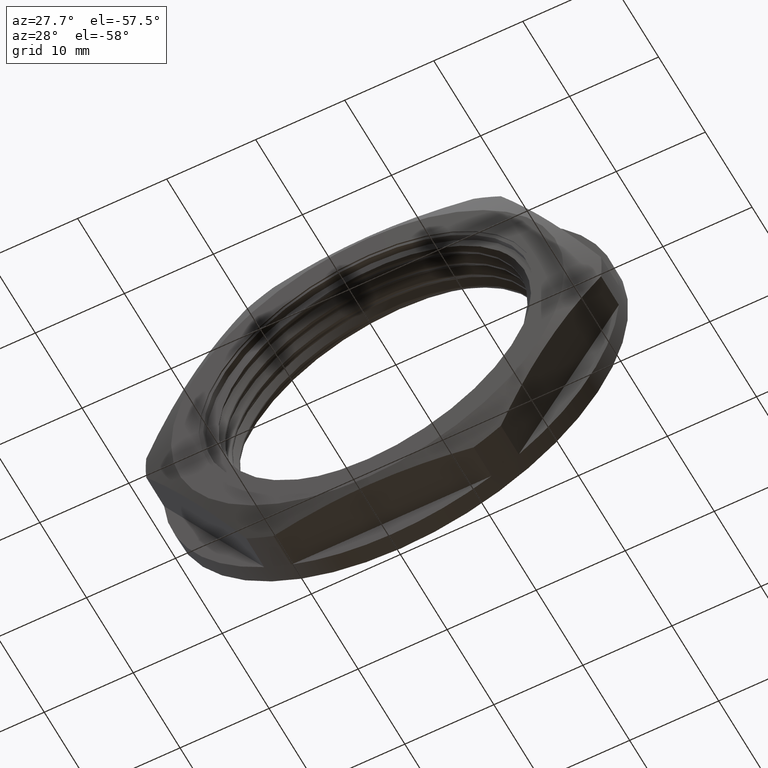
[diagram: clean part render]
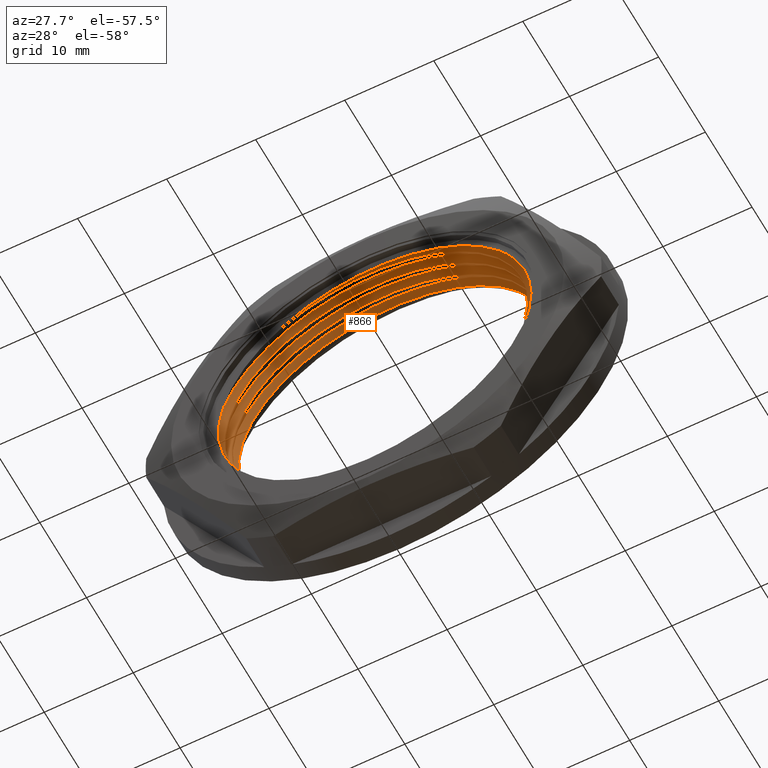
[diagram: same view with one face highlighted and labeled with its STEP entity id]
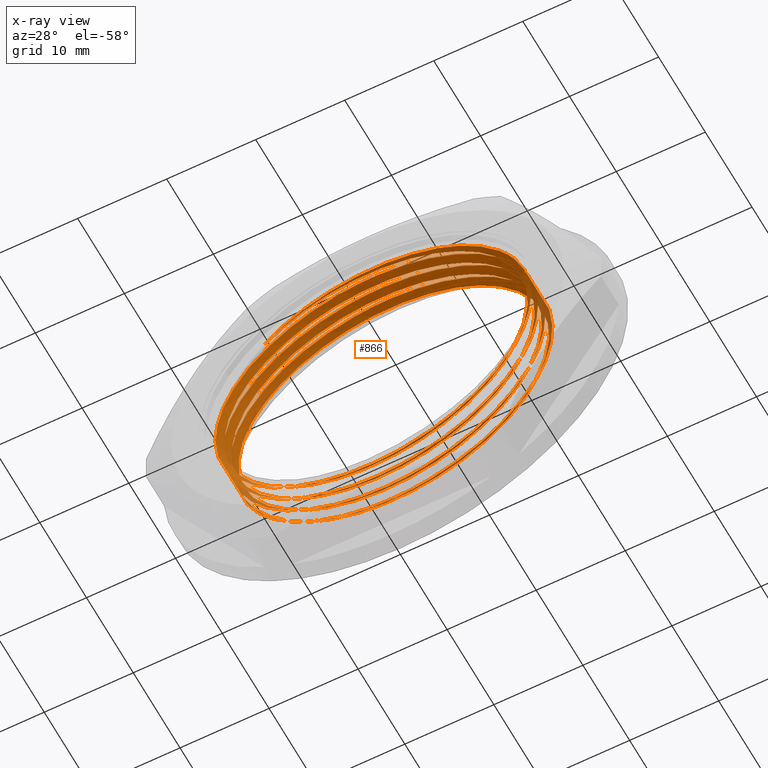
[diagram: x-ray of the same camera — body ghosted, the highlighted face saturated]
A machine part, auxiliary view. The second image highlights one B-rep face of the part: STEP entity #866.
The next image is the same camera in x-ray: the body ghosted, the highlighted face saturated — about 6% of this face is hidden behind the body in this view.
In plain terms, the highlighted face is a freeform B-spline surface patch.
Its self-contained STEP definition (entity closure, byte-faithful):
#4 = CARTESIAN_POINT ( 'NONE',  ( -12.18549335496495800, -34.66422332182955300, 12.19215650132532100 ) ) ;
#9 = CARTESIAN_POINT ( 'NONE',  ( -17.23359359024917100, -34.75986423092049200, 7.144030621165844900 ) ) ;
#15 = FACE_OUTER_BOUND ( 'NONE', #2589, .T. ) ;
#16 = CARTESIAN_POINT ( 'NONE',  ( 0.001804388023163368400, -38.29857786728410200, -17.23037161698330900 ) ) ;
#17 = CARTESIAN_POINT ( 'NONE',  ( -7.137305562599793000, -38.20293695819320600, -17.23038975064849500 ) ) ;
#18 = CARTESIAN_POINT ( 'NONE',  ( -12.18543144275926900, -38.10729604910226700, -12.18228951536428500 ) ) ;
#19 = CARTESIAN_POINT ( 'NONE',  ( -17.23357545658398500, -37.91601423092045300, 0.004920670542888118400 ) ) ;
#20 = CARTESIAN_POINT ( 'NONE',  ( -12.18549335496495800, -37.72473241273863200, 12.19215650132532100 ) ) ;
#21 = CARTESIAN_POINT ( 'NONE',  ( -7.137393119680744700, -37.62909150364774300, 17.24028238148480700 ) ) ;
#22 = CARTESIAN_POINT ( 'NONE',  ( -17.23359359024917100, -37.82037332182957800, 7.144030621165844900 ) ) ;
#25 = CARTESIAN_POINT ( 'NONE',  ( -17.23355732291874500, -38.01165514001135600, -7.134189280080070400 ) ) ;
#33 = CARTESIAN_POINT ( 'NONE',  ( 0.001716830942212114200, -37.53345059455681800, 17.24030051515003200 ) ) ;
#34 = CARTESIAN_POINT ( 'NONE',  ( 7.140826781565171400, -37.43780968546590800, 17.24031864881522200 ) ) ;
#35 = CARTESIAN_POINT ( 'NONE',  ( 12.18895266172464500, -37.34216877637501100, 12.19221841353100900 ) ) ;
#36 = CARTESIAN_POINT ( 'NONE',  ( 17.23707854188412400, -37.24652786728408700, 7.144118178246807300 ) ) ;
#37 = CARTESIAN_POINT ( 'NONE',  ( 12.18901457393033500, -36.95960514001136200, -12.18222760315859300 ) ) ;
#38 = CARTESIAN_POINT ( 'NONE',  ( 17.23711480921455700, -37.05524604910225900, -7.134101722999127500 ) ) ;
#39 = CARTESIAN_POINT ( 'NONE',  ( 7.140914338646133800, -36.86396423092043800, -17.23035348331806600 ) ) ;
#40 = CARTESIAN_POINT ( 'NONE',  ( 0.001804388023163368400, -36.76832332182954100, -17.23037161698330900 ) ) ;
#41 = CARTESIAN_POINT ( 'NONE',  ( 17.23709667554936000, -37.15088695819317600, 0.005008227623841484200 ) ) ;
#42 = CARTESIAN_POINT ( 'NONE',  ( -7.137305562599793000, -36.67268241273865900, -17.23038975064849500 ) ) ;
#43 = CARTESIAN_POINT ( 'NONE',  ( -17.23359359024917100, -36.29011877637499600, 7.144030621165844900 ) ) ;
#44 = CARTESIAN_POINT ( 'NONE',  ( -12.18549335496495800, -36.19447786728408500, 12.19215650132532100 ) ) ;
#45 = CARTESIAN_POINT ( 'NONE',  ( -7.137393119680744700, -36.09883695819316800, 17.24028238148480700 ) ) ;
#46 = CARTESIAN_POINT ( 'NONE',  ( -17.23355732291874500, -36.48140059455682400, -7.134189280080070400 ) ) ;
#47 = CARTESIAN_POINT ( 'NONE',  ( 0.001716830942212114200, -36.00319604910227200, 17.24030051515003200 ) ) ;
#48 = CARTESIAN_POINT ( 'NONE',  ( 7.140826781565171400, -35.90755514001136800, 17.24031864881522200 ) ) ;
#49 = CARTESIAN_POINT ( 'NONE',  ( -17.23357545658398500, -36.38575968546590600, 0.004920670542888118400 ) ) ;
#50 = CARTESIAN_POINT ( 'NONE',  ( -12.18543144275926900, -36.57704150364773500, -12.18228951536428500 ) ) ;
#51 = CARTESIAN_POINT ( 'NONE',  ( 12.18895266172464500, -35.81191423092045100, 12.19221841353100900 ) ) ;
#52 = CARTESIAN_POINT ( 'NONE',  ( 17.23709667554936000, -35.62063241273863700, 0.005008227623841484200 ) ) ;
#53 = CARTESIAN_POINT ( 'NONE',  ( 17.23711480921455700, -35.52499150364773300, -7.134101722999127500 ) ) ;
#54 = CARTESIAN_POINT ( 'NONE',  ( 17.23707854188412400, -35.71627332182956100, 7.144118178246807300 ) ) ;
#55 = CARTESIAN_POINT ( 'NONE',  ( 12.18901457393033500, -35.42935059455681600, -12.18222760315859300 ) ) ;
#56 = CARTESIAN_POINT ( 'NONE',  ( -17.23355732291874500, -34.95114604910226300, -7.134189280080070400 ) ) ;
#57 = CARTESIAN_POINT ( 'NONE',  ( -17.23357545658398500, -34.85550514001136000, 0.004920670542888118400 ) ) ;
#58 = CARTESIAN_POINT ( 'NONE',  ( 7.140914338646133800, -35.33370968546591200, -17.23035348331806600 ) ) ;
#59 = CARTESIAN_POINT ( 'NONE',  ( 0.001804388023163368400, -35.23806877637499500, -17.23037161698330900 ) ) ;
#60 = CARTESIAN_POINT ( 'NONE',  ( -7.137305562599793000, -35.14242786728409100, -17.23038975064849500 ) ) ;
#61 = CARTESIAN_POINT ( 'NONE',  ( -12.18543144275926900, -35.04678695819318100, -12.18228951536428500 ) ) ;
#75 = CARTESIAN_POINT ( 'NONE',  ( 0.001760609482677869500, -35.81562071566762700, -17.91867191455300600 ) ) ;
#77 = CARTESIAN_POINT ( 'NONE',  ( -17.92187575409584400, -35.43305766579467800, 0.004918922228708546100 ) ) ;
#78 = CARTESIAN_POINT ( 'NONE',  ( -17.92189461193650100, -35.33741675670372500, 7.429132191066527100 ) ) ;
#79 = CARTESIAN_POINT ( 'NONE',  ( -7.422425990379125900, -35.71998004950944500, -17.91867191455297700 ) ) ;
#80 = CARTESIAN_POINT ( 'NONE',  ( -12.67213201437784200, -35.62433948397651300, -12.66899255947248000 ) ) ;
#81 = CARTESIAN_POINT ( 'NONE',  ( -17.92185689625519300, -35.52869857488555300, -7.419294346609110100 ) ) ;
#82 = CARTESIAN_POINT ( 'NONE',  ( 0.001715082628032499200, -35.05049402943104300, 17.92860081266189800 ) ) ;
#83 = CARTESIAN_POINT ( 'NONE',  ( -12.67219639907315500, -35.24177584761286400, 12.67885707294389200 ) ) ;
#84 = CARTESIAN_POINT ( 'NONE',  ( -7.422498186209785400, -35.14613493852191100, 17.92858195482124700 ) ) ;
#85 = CARTESIAN_POINT ( 'NONE',  ( 0.001737846055364977500, -35.05049373618584200, 17.92860081271972200 ) ) ;
#86 = CARTESIAN_POINT ( 'NONE',  ( 0.001760609482697529700, -35.05049344294035800, 17.92860081271973600 ) ) ;
#348 = CARTESIAN_POINT ( 'NONE',  ( 7.426019405175170900, -35.91126221124921600, -17.91865305665450900 ) ) ;
#349 = CARTESIAN_POINT ( 'NONE',  ( 0.001783372909989098900, -35.81562100891310500, -17.91867191455298800 ) ) ;
#373 = CARTESIAN_POINT ( 'NONE',  ( 0.001760609482677869500, -35.81562071566762700, -17.91867191455300600 ) ) ;
#376 = CARTESIAN_POINT ( 'NONE',  ( 17.92539593998512300, -36.10254366705110100, -7.419223183917608800 ) ) ;
#378 = CARTESIAN_POINT ( 'NONE',  ( 17.92539697311887900, -36.19818431990000100, 0.004961954868383366300 ) ) ;
#380 = CARTESIAN_POINT ( 'NONE',  ( 0.001806136337342899300, -35.81562130215831300, -17.91867191449517100 ) ) ;
#398 = CARTESIAN_POINT ( 'NONE',  ( 12.67571761803852900, -36.00690312034014100, -12.66892817477716400 ) ) ;
#402 = CARTESIAN_POINT ( 'NONE',  ( 0.001760609482677869700, -31.22485707930399100, -17.91867191455300600 ) ) ;
#428 = CARTESIAN_POINT ( 'NONE',  ( 0.001760609482677869500, -35.81562071566762700, -17.91867191455300600 ) ) ;
#429 = CARTESIAN_POINT ( 'NONE',  ( 0.001760609482697530000, -31.98998435203125700, 17.92860081271973600 ) ) ;
#451 = CARTESIAN_POINT ( 'NONE',  ( 0.001760609482697529700, -35.05049344294035800, 17.92860081271973600 ) ) ;
#455 = CARTESIAN_POINT ( 'NONE',  ( 0.001760609482697529700, -33.52023889748581100, 17.92860081271973600 ) ) ;
#456 = CARTESIAN_POINT ( 'NONE',  ( -17.66312595560996000, -30.80182068353636600, 3.039519299185268900 ) ) ;
#459 = CARTESIAN_POINT ( 'NONE',  ( 0.001760609482677869700, -32.75511162475854100, -17.91867191455300600 ) ) ;
#469 = CARTESIAN_POINT ( 'NONE',  ( -12.37892054371602900, -36.19818431989998700, 11.99560844742661000 ) ) ;
#480 = CARTESIAN_POINT ( 'NONE',  ( 10.16295586653371800, -30.80182068353635900, -13.91649094395144800 ) ) ;
#495 = CARTESIAN_POINT ( 'NONE',  ( 17.92539697311887900, -36.19818431990000100, 0.004961954868383366300 ) ) ;
#510 = CARTESIAN_POINT ( 'NONE',  ( 0.001760609482677869700, -34.28536617021308800, -17.91867191455300600 ) ) ;
#772 = ORIENTED_EDGE ( 'NONE', *, *, #936, .T. ) ;
#773 = ORIENTED_EDGE ( 'NONE', *, *, #927, .F. ) ;
#841 = EDGE_CURVE ( 'NONE', #1091, #1090, #1186, .T. ) ;
#866 = ADVANCED_FACE ( 'NONE', ( #15 ), #1189, .F. ) ;
#871 = EDGE_CURVE ( 'NONE', #1105, #1118, #1190, .T. ) ;
#901 = EDGE_CURVE ( 'NONE', #1104, #1121, #1196, .T. ) ;
#903 = EDGE_CURVE ( 'NONE', #1118, #1123, #1202, .T. ) ;
#905 = EDGE_CURVE ( 'NONE', #1123, #1104, #1206, .T. ) ;
#906 = EDGE_CURVE ( 'NONE', #1108, #1091, #1203, .T. ) ;
#927 = EDGE_CURVE ( 'NONE', #1121, #1108, #1208, .T. ) ;
#936 = EDGE_CURVE ( 'NONE', #1132, #1090, #1226, .T. ) ;
#938 = EDGE_CURVE ( 'NONE', #1133, #1138, #1217, .T. ) ;
#960 = EDGE_CURVE ( 'NONE', #1132, #1133, #1198, .T. ) ;
#975 = EDGE_CURVE ( 'NONE', #1138, #1105, #1195, .T. ) ;
#1090 = VERTEX_POINT ( 'NONE', #456 ) ;
#1091 = VERTEX_POINT ( 'NONE', #402 ) ;
#1104 = VERTEX_POINT ( 'NONE', #455 ) ;
#1105 = VERTEX_POINT ( 'NONE', #428 ) ;
#1108 = VERTEX_POINT ( 'NONE', #429 ) ;
#1118 = VERTEX_POINT ( 'NONE', #451 ) ;
#1121 = VERTEX_POINT ( 'NONE', #459 ) ;
#1123 = VERTEX_POINT ( 'NONE', #510 ) ;
#1132 = VERTEX_POINT ( 'NONE', #480 ) ;
#1133 = VERTEX_POINT ( 'NONE', #469 ) ;
#1138 = VERTEX_POINT ( 'NONE', #495 ) ;
#1186 =( BOUNDED_CURVE ( )  B_SPLINE_CURVE ( 2, ( #2499, #2501, #2502, #2478, #2504, #2482, #2485 ),
 .UNSPECIFIED., .F., .T. ) 
 B_SPLINE_CURVE_WITH_KNOTS ( ( 3, 2, 2, 3 ),
 ( 0.0000000000000000000, 0.01416420533905698300, 0.02832845768542535300, 0.03143188236434077400 ),
 .UNSPECIFIED. ) 
 CURVE ( )  GEOMETRIC_REPRESENTATION_ITEM ( )  RATIONAL_B_SPLINE_CURVE ( ( 0.9999994947553100300, 0.9238797851344703300, 1.000000000000000000, 0.9238795325112869600, 1.000000000000000000, 0.9833218067852611500, 0.9739520849471441400 ) ) 
 REPRESENTATION_ITEM ( '' )  );
#1189 =( BOUNDED_SURFACE ( )  B_SPLINE_SURFACE ( 1, 2, ( 
 ( #16, #17, #18, #25, #19, #22, #20, #21, #33, #34, #35, #36, #41, #38, #37, #39, #40, #42, #50, #46, #49, #43, #44, #45, #47, #48, #51, #54, #52, #53, #55, #58, #59, #60, #61, #56, #57, #9, #4, #2221, #2213, #2212, #2216, #2214, #2215, #2217, #2218, #2219, #2220, #2043, #2044, #2045, #2038, #2046, #2047, #2040, #2039, #2041, #2042, #2048, #2049, #2050, #2051, #2052, #2055, #2060, #2061, #2053, #2054, #2056, #2059, #2057, #2058, #2069, #2066, #2067, #2068, #2070, #2071, #2072, #2074, #2062, #2073, #2063, #2064, #2065, #2075, #2087, #2089, #2090, #2081, #2084, #2092, #2093, #2094, #2085, #2082, #2086, #2080, #2076, #2088, #2083, #2091 ),
 ( #2077, #2078, #2079, #2095, #2096, #2097, #2098, #2099, #2100, #2105, #2101, #2102, #2103, #2104, #2115, #2106, #2113, #2116, #2110, #2112, #2109, #2107, #2108, #2111, #2114, #2118, #2119, #2120, #2117, #2121, #2122, #2124, #2126, #2125, #2123, #2132, #2128, #2133, #2129, #2130, #2131, #2127, #2136, #2134, #2135, #2138, #2139, #2137, #2145, #2142, #2140, #2144, #2141, #2143, #2149, #2146, #2147, #2148, #2150, #2151, #2152, #2153, #2154, #2155, #2159, #2166, #2167, #2156, #2168, #2160, #2169, #2157, #2164, #2158, #2161, #2162, #2163, #2165, #2170, #2171, #2172, #2178, #2175, #2179, #2173, #2180, #2181, #2182, #2176, #2183, #2174, #2184, #2177, #2185, #2190, #2197, #2186, #2194, #2192, #2198, #2195, #2191, #2196 ) ),
 .UNSPECIFIED., .F., .F., .T. ) 
 B_SPLINE_SURFACE_WITH_KNOTS ( ( 2, 2 ),
 ( 3, 2, 2, 2, 2, 2, 2, 2, 2, 2, 2, 2, 2, 2, 2, 2, 2, 2, 2, 2, 2, 2, 2, 2, 2, 2, 2, 2, 2, 2, 2, 2, 2, 2, 2, 2, 2, 2, 2, 2, 2, 2, 2, 2, 2, 2, 2, 2, 2, 2, 2, 3 ),
 ( 0.0000000000000000000, 1.000000000000000000 ),
 ( 0.0000000000000000000, 0.01785714285714284900, 0.03571428571428569800, 0.05357142857142859600, 0.07142857142857139700, 0.08928571428571430200, 0.1071428571428570000, 0.1250000000000000000, 0.1428571428571430200, 0.1607142857142854800, 0.1785714285714284900, 0.1964285714285715100, 0.2142857142857145000, 0.2321428571428570100, 0.2500000000000000000, 0.2678571428571430200, 0.2857142857142855300, 0.3035714285714284900, 0.3214285714285715100, 0.3392857142857145200, 0.3571428571428569800, 0.3750000000000000000, 0.3928571428571430200, 0.4107142857142855300, 0.4285714285714284900, 0.4464285714285715100, 0.4642857142857140200, 0.4821428571428569800, 0.5000000000000000000, 0.5178571428571430200, 0.5357142857142859200, 0.5535714285714290500, 0.5714285714285709500, 0.5892857142857139700, 0.6071428571428569800, 0.6250000000000000000, 0.6428571428571430200, 0.6607142857142859200, 0.6785714285714290500, 0.6964285714285709500, 0.7142857142857139700, 0.7321428571428569800, 0.7500000000000000000, 0.7678571428571430200, 0.7857142857142859200, 0.8035714285714290500, 0.8214285714285709500, 0.8392857142857139700, 0.8571428571428569800, 0.8750000000000000000, 0.8928571428571430200, 0.8996306387812650400 ),
 .UNSPECIFIED. ) 
 GEOMETRIC_REPRESENTATION_ITEM ( )  RATIONAL_B_SPLINE_SURFACE ( (
 ( 1.000000000000000000, 0.9238795325112869600, 1.000000000000000000, 0.9238795325112869600, 1.000000000000000000, 0.9238795325112869600, 1.000000000000000000, 0.9238795325112869600, 1.000000000000000000, 0.9238795325112869600, 1.000000000000000000, 0.9238795325112869600, 1.000000000000000000, 0.9238795325112869600, 1.000000000000000000, 0.9238795325112869600, 1.000000000000000000, 0.9238795325112869600, 1.000000000000000000, 0.9238795325112869600, 1.000000000000000000, 0.9238795325112869600, 1.000000000000000000, 0.9238795325112869600, 1.000000000000000000, 0.9238795325112869600, 1.000000000000000000, 0.9238795325112869600, 1.000000000000000000, 0.9238795325112869600, 1.000000000000000000, 0.9238795325112869600, 1.000000000000000000, 0.9238795325112869600, 1.000000000000000000, 0.9238795325112869600, 1.000000000000000000, 0.9238795325112869600, 1.000000000000000000, 0.9238795325112869600, 1.000000000000000000, 0.9238795325112869600, 1.000000000000000000, 0.9238795325112869600, 1.000000000000000000, 0.9238795325112869600, 1.000000000000000000, 0.9238795325112869600, 1.000000000000000000, 0.9238795325112869600, 1.000000000000000000, 0.9238795325112869600, 1.000000000000000000, 0.9238795325112869600, 1.000000000000000000, 0.9238795325112869600, 1.000000000000000000, 0.9238795325112869600, 1.000000000000000000, 0.9238795325112869600, 1.000000000000000000, 0.9238795325112869600, 1.000000000000000000, 0.9238795325112869600, 1.000000000000000000, 0.9238795325112869600, 1.000000000000000000, 0.9238795325112869600, 1.000000000000000000, 0.9238795325112869600, 1.000000000000000000, 0.9238795325112869600, 1.000000000000000000, 0.9238795325112869600, 1.000000000000000000, 0.9238795325112869600, 1.000000000000000000, 0.9238795325112869600, 1.000000000000000000, 0.9238795325112869600, 1.000000000000000000, 0.9238795325112869600, 1.000000000000000000, 0.9238795325112869600, 1.000000000000000000, 0.9238795325112869600, 1.000000000000000000, 0.9238795325112869600, 1.000000000000000000, 0.9238795325112869600, 1.000000000000000000, 0.9238795325112869600, 1.000000000000000000, 0.9238795325112869600, 1.000000000000000000, 0.9238795325112869600, 1.000000000000000000, 0.9238795325112869600, 1.000000000000000000, 0.9238795325112869600, 1.000000000000000000, 0.9711263061284830500, 0.9641571072053110000),
 ( 1.000000000000000000, 0.9238795325112869600, 1.000000000000000000, 0.9238795325112869600, 1.000000000000000000, 0.9238795325112869600, 1.000000000000000000, 0.9238795325112869600, 1.000000000000000000, 0.9238795325112869600, 1.000000000000000000, 0.9238795325112869600, 1.000000000000000000, 0.9238795325112869600, 1.000000000000000000, 0.9238795325112869600, 1.000000000000000000, 0.9238795325112869600, 1.000000000000000000, 0.9238795325112869600, 1.000000000000000000, 0.9238795325112869600, 1.000000000000000000, 0.9238795325112869600, 1.000000000000000000, 0.9238795325112869600, 1.000000000000000000, 0.9238795325112869600, 1.000000000000000000, 0.9238795325112869600, 1.000000000000000000, 0.9238795325112869600, 1.000000000000000000, 0.9238795325112869600, 1.000000000000000000, 0.9238795325112869600, 1.000000000000000000, 0.9238795325112869600, 1.000000000000000000, 0.9238795325112869600, 1.000000000000000000, 0.9238795325112869600, 1.000000000000000000, 0.9238795325112869600, 1.000000000000000000, 0.9238795325112869600, 1.000000000000000000, 0.9238795325112869600, 1.000000000000000000, 0.9238795325112869600, 1.000000000000000000, 0.9238795325112869600, 1.000000000000000000, 0.9238795325112869600, 1.000000000000000000, 0.9238795325112869600, 1.000000000000000000, 0.9238795325112869600, 1.000000000000000000, 0.9238795325112869600, 1.000000000000000000, 0.9238795325112869600, 1.000000000000000000, 0.9238795325112869600, 1.000000000000000000, 0.9238795325112869600, 1.000000000000000000, 0.9238795325112869600, 1.000000000000000000, 0.9238795325112869600, 1.000000000000000000, 0.9238795325112869600, 1.000000000000000000, 0.9238795325112869600, 1.000000000000000000, 0.9238795325112869600, 1.000000000000000000, 0.9238795325112869600, 1.000000000000000000, 0.9238795325112869600, 1.000000000000000000, 0.9238795325112869600, 1.000000000000000000, 0.9238795325112869600, 1.000000000000000000, 0.9238795325112869600, 1.000000000000000000, 0.9238795325112869600, 1.000000000000000000, 0.9238795325112869600, 1.000000000000000000, 0.9238795325112869600, 1.000000000000000000, 0.9238795325112869600, 1.000000000000000000, 0.9238795325112869600, 1.000000000000000000, 0.9238795325112869600, 1.000000000000000000, 0.9238795325112869600, 1.000000000000000000, 0.9711263061284830500, 0.9641571072053110000) ) ) 
 REPRESENTATION_ITEM ( '' )  SURFACE ( )  );
#1190 =( BOUNDED_CURVE ( )  B_SPLINE_CURVE ( 2, ( #75, #79, #80, #81, #77, #78, #83, #84, #82, #85, #86 ),
 .UNSPECIFIED., .F., .F. ) 
 B_SPLINE_CURVE_WITH_KNOTS ( ( 3, 2, 2, 2, 2, 3 ),
 ( -0.3405535492728647400, -0.3263638585221591600, -0.3121741206795626300, -0.2979843828369661000, -0.2837946449943700200, -0.2837945979024791800 ),
 .UNSPECIFIED. ) 
 CURVE ( )  GEOMETRIC_REPRESENTATION_ITEM ( )  RATIONAL_B_SPLINE_CURVE ( ( 0.9999994947553094700, 0.9238797851344706700, 1.000000000000000000, 0.9238795325112869600, 1.000000000000000000, 0.9238795325112869600, 1.000000000000000000, 0.9238795325112869600, 1.000000000000000000, 0.9999997473768166300, 0.9999994947553100300 ) ) 
 REPRESENTATION_ITEM ( '' )  );
#1195 =( BOUNDED_CURVE ( )  B_SPLINE_CURVE ( 2, ( #378, #376, #398, #348, #380, #349, #373 ),
 .UNSPECIFIED., .F., .T. ) 
 B_SPLINE_CURVE_WITH_KNOTS ( ( 3, 2, 2, 3 ),
 ( -0.3689073417189194200, -0.3547304938339797000, -0.3405535963221420500, -0.3405535492728647400 ),
 .UNSPECIFIED. ) 
 CURVE ( )  GEOMETRIC_REPRESENTATION_ITEM ( )  RATIONAL_B_SPLINE_CURVE ( ( 0.9999994670752927500, 0.9238797989745734000, 1.000000000000000000, 0.9238795325112869600, 1.000000000000000000, 0.9999997473768162900, 0.9999994947553094700 ) ) 
 REPRESENTATION_ITEM ( '' )  );
#1196 =( BOUNDED_CURVE ( )  B_SPLINE_CURVE ( 2, ( #1239, #1259, #1240, #1271, #1241, #1243, #1252, #1250, #1234, #1277, #1247 ),
 .UNSPECIFIED., .F., .T. ) 
 B_SPLINE_CURVE_WITH_KNOTS ( ( 3, 2, 2, 2, 2, 3 ),
 ( -0.1702767269516042600, -0.1560870441483450400, -0.1418973142532214400, -0.1277075843580976500, -0.1135178544629748500, -0.1135178073711103900 ),
 .UNSPECIFIED. ) 
 CURVE ( )  GEOMETRIC_REPRESENTATION_ITEM ( )  RATIONAL_B_SPLINE_CURVE ( ( 0.9999994947553100300, 0.9238797851344703300, 1.000000000000000000, 0.9238795325112869600, 1.000000000000000000, 0.9238795325112869600, 1.000000000000000000, 0.9238795325112869600, 1.000000000000000000, 0.9999997473768166300, 0.9999994947553100300 ) ) 
 REPRESENTATION_ITEM ( '' )  );
#1198 =( BOUNDED_CURVE ( )  B_SPLINE_CURVE ( 2, ( #1709, #1707, #1719, #1679, #1703, #1710, #1704, #1708, #1705, #1680, #1712, #1714, #1706, #1715, #1717, #1718, #1720, #1722, #1725, #1676, #1677, #1727, #1726, #1735, #1739, #1733, #1730, #1736, #1737, #1751, #1734, #1738, #1744, #1740, #1729, #1741, #1754, #1742, #1755, #1757, #1743, #1745, #1746, #1756, #1747, #1748, #1749, #1753, #1758, #1750, #1731, #1752, #1759, #1760, #1762, #1761, #1764, #1763, #1732, #1765, #1766 ),
 .UNSPECIFIED., .F., .T. ) 
 B_SPLINE_CURVE_WITH_KNOTS ( ( 3, 2, 2, 2, 2, 2, 2, 2, 2, 2, 2, 2, 2, 2, 2, 2, 2, 2, 2, 2, 2, 2, 2, 2, 2, 2, 2, 2, 2, 2, 3 ),
 ( 0.1996360168553946700, 0.2032020673526940800, 0.2210592102098359900, 0.2389163530669791100, 0.2567734959241220200, 0.2746306387812650400, 0.2924877816384080500, 0.3103449244955510700, 0.3282020673526940800, 0.3460592102098359900, 0.3639163530669791100, 0.3817734959241220200, 0.3996306387812650400, 0.4174877816384080500, 0.4353449244955510100, 0.4532020673526935300, 0.4710592102098365400, 0.4889163530669795000, 0.5067734959241220200, 0.5246306387812650400, 0.5424877816384080500, 0.5603449244955505100, 0.5782020673526935300, 0.5960592102098365400, 0.6139163530669795600, 0.6317734959241220200, 0.6496306387812650400, 0.6674877816384080500, 0.6853449244955505100, 0.7032020673526935300, 0.7035747866209879400 ),
 .UNSPECIFIED. ) 
 CURVE ( )  GEOMETRIC_REPRESENTATION_ITEM ( )  RATIONAL_B_SPLINE_CURVE ( ( 0.9756689746505107200, 0.9847988318672039600, 1.000000000000000000, 0.9238795325112869600, 1.000000000000000000, 0.9238795325112869600, 1.000000000000000000, 0.9238795325112869600, 1.000000000000000000, 0.9238795325112869600, 1.000000000000000000, 0.9238795325112869600, 1.000000000000000000, 0.9238795325112869600, 1.000000000000000000, 0.9238795325112869600, 1.000000000000000000, 0.9238795325112869600, 1.000000000000000000, 0.9238795325112869600, 1.000000000000000000, 0.9238795325112869600, 1.000000000000000000, 0.9238795325112869600, 1.000000000000000000, 0.9238795325112869600, 1.000000000000000000, 0.9238795325112869600, 1.000000000000000000, 0.9238795325112869600, 1.000000000000000000, 0.9238795325112869600, 1.000000000000000000, 0.9238795325112869600, 1.000000000000000000, 0.9238795325112869600, 1.000000000000000000, 0.9238795325112869600, 1.000000000000000000, 0.9238795325112869600, 1.000000000000000000, 0.9238795325112869600, 1.000000000000000000, 0.9238795325112869600, 1.000000000000000000, 0.9238795325112869600, 1.000000000000000000, 0.9238795325112869600, 1.000000000000000000, 0.9238795325112869600, 1.000000000000000000, 0.9238795325112869600, 1.000000000000000000, 0.9238795325112869600, 1.000000000000000000, 0.9238795325112869600, 1.000000000000000000, 0.9238795325112869600, 1.000000000000000000, 0.9984111923631012700, 0.9968887087988296300 ) ) 
 REPRESENTATION_ITEM ( '' )  );
#1202 =( BOUNDED_CURVE ( )  B_SPLINE_CURVE ( 2, ( #1274, #1235, #1264, #1229, #1254, #1261, #1253, #1255, #1256, #1262, #1267 ),
 .UNSPECIFIED., .F., .T. ) 
 B_SPLINE_CURVE_WITH_KNOTS ( ( 3, 2, 2, 2, 2, 3 ),
 ( -0.2837945979024791800, -0.2696049098009229400, -0.2554151746074846400, -0.2412254394140467800, -0.2270357042206085100, -0.2270356571287264800 ),
 .UNSPECIFIED. ) 
 CURVE ( )  GEOMETRIC_REPRESENTATION_ITEM ( )  RATIONAL_B_SPLINE_CURVE ( ( 0.9999994947553100300, 0.9238797851344703300, 1.000000000000000000, 0.9238795325112869600, 1.000000000000000000, 0.9238795325112869600, 1.000000000000000000, 0.9238795325112869600, 1.000000000000000000, 0.9999997473768166300, 0.9999994947553100300 ) ) 
 REPRESENTATION_ITEM ( '' )  );
#1203 =( BOUNDED_CURVE ( )  B_SPLINE_CURVE ( 2, ( #1280, #1301, #1307, #1312, #1289, #1295, #1320, #1321, #1327, #1297, #1298 ),
 .UNSPECIFIED., .F., .T. ) 
 B_SPLINE_CURVE_WITH_KNOTS ( ( 3, 2, 2, 2, 2, 3 ),
 ( -0.05675889838724299700, -0.04256922088227899100, -0.02837949628546793800, -0.01418977168865785000, -4.709184688034273600E-008, 0.0000000000000000000 ),
 .UNSPECIFIED. ) 
 CURVE ( )  GEOMETRIC_REPRESENTATION_ITEM ( )  RATIONAL_B_SPLINE_CURVE ( ( 0.9999994947553100300, 0.9238797851344703300, 1.000000000000000000, 0.9238795325112869600, 1.000000000000000000, 0.9238795325112869600, 1.000000000000000000, 0.9238795325112869600, 1.000000000000000000, 0.9999997473768166300, 0.9999994947553100300 ) ) 
 REPRESENTATION_ITEM ( '' )  );
#1206 =( BOUNDED_CURVE ( )  B_SPLINE_CURVE ( 2, ( #1260, #1292, #1315, #1303, #1296, #1293, #1283, #1300, #1278, #1322, #1290 ),
 .UNSPECIFIED., .F., .T. ) 
 B_SPLINE_CURVE_WITH_KNOTS ( ( 3, 2, 2, 2, 2, 3 ),
 ( -0.2270356571287264800, -0.2128459716763190800, -0.1986562391320388100, -0.1844665065877581800, -0.1702767740434775200, -0.1702767269516042600 ),
 .UNSPECIFIED. ) 
 CURVE ( )  GEOMETRIC_REPRESENTATION_ITEM ( )  RATIONAL_B_SPLINE_CURVE ( ( 0.9999994947553100300, 0.9238797851344703300, 1.000000000000000000, 0.9238795325112869600, 1.000000000000000000, 0.9238795325112869600, 1.000000000000000000, 0.9238795325112869600, 1.000000000000000000, 0.9999997473768166300, 0.9999994947553100300 ) ) 
 REPRESENTATION_ITEM ( '' )  );
#1208 =( BOUNDED_CURVE ( )  B_SPLINE_CURVE ( 2, ( #1423, #1424, #1427, #1395, #1425, #1396, #1403, #1428, #1406, #1408, #1409 ),
 .UNSPECIFIED., .F., .T. ) 
 B_SPLINE_CURVE_WITH_KNOTS ( ( 3, 2, 2, 2, 2, 3 ),
 ( -0.1135178073711103900, -0.09932812721699921200, -0.08513839997103236900, -0.07094867272506552600, -0.05675894547909866200, -0.05675889838724300400 ),
 .UNSPECIFIED. ) 
 CURVE ( )  GEOMETRIC_REPRESENTATION_ITEM ( )  RATIONAL_B_SPLINE_CURVE ( ( 0.9999994947553100300, 0.9238797851344703300, 1.000000000000000000, 0.9238795325112869600, 1.000000000000000000, 0.9238795325112869600, 1.000000000000000000, 0.9238795325112869600, 1.000000000000000000, 0.9999997473768166300, 0.9999994947553100300 ) ) 
 REPRESENTATION_ITEM ( '' )  );
#1217 = B_SPLINE_CURVE_WITH_KNOTS ( 'NONE', 3,
 ( #1568, #1557, #1569, #1571, #1578, #1541, #1543, #1531, #1579, #1572, #1582, #1585, #1580, #1533, #1542, #1586, #1529, #1558, #1562, #1574, #1545, #1575, #1547, #1581, #1587, #1548, #1588, #1560, #1532, #1563, #1564, #1565, #1589, #1591, #1590, #1592, #1602, #1628, #1601, #1593, #1594, #1627 ),
 .UNSPECIFIED., .F., .F.,
 ( 4, 2, 2, 2, 2, 2, 2, 2, 2, 2, 2, 2, 2, 2, 2, 2, 2, 2, 2, 2, 4 ),
 ( 0.0000000000000000000, 0.001312804275704244300, 0.002625608551408488500, 0.005251217102816979600, 0.007876825654225472900, 0.01050243420563396600, 0.01312804275704245900, 0.01444084703274670600, 0.01575365130845095300, 0.01837925985985944600, 0.02100486841126793600, 0.02363047696267642900, 0.02494328123838067700, 0.02625608551408492900, 0.02888169406549341600, 0.03150730261690190500, 0.03413291116831039500, 0.03675851971971888500, 0.03807132399542313000, 0.03938412827112737500, 0.04200973682253586500 ),
 .UNSPECIFIED. ) ;
#1226 = B_SPLINE_CURVE_WITH_KNOTS ( 'NONE', 3,
 ( #1473, #1512, #1521, #1496, #1505, #1490, #1470, #1492, #1513, #1519, #1494, #1498, #1474, #1502, #1481, #1522, #1483, #1504, #1523, #1524, #1499, #1549, #1536, #1561, #1583, #1570, #1573, #1559, #1534, #1576, #1530, #1554, #1584, #1550, #1537, #1566, #1528, #1551, #1540, #1567, #1552, #1553 ),
 .UNSPECIFIED., .F., .F.,
 ( 4, 2, 2, 2, 2, 2, 2, 2, 2, 2, 2, 2, 2, 2, 2, 2, 2, 2, 2, 2, 4 ),
 ( 1.734723475976807100E-018, 0.001312579585112482700, 0.002625159170224963600, 0.005250318340449928100, 0.007875477510674891800, 0.01050063668089985600, 0.01312579585112482100, 0.01443837543623730500, 0.01575095502134978700, 0.01837611419157475500, 0.02100127336179972300, 0.02362643253202469100, 0.02493901211713717100, 0.02625159170224965900, 0.02887675087247462700, 0.03150191004269958800, 0.03412706921292455600, 0.03675222838314952400, 0.03806480796826200400, 0.03937738755337449900, 0.04200254672359946700 ),
 .UNSPECIFIED. ) ;
#1229 = CARTESIAN_POINT ( 'NONE',  ( 17.92537811522056400, -34.76357130215831100, 7.429223244775848800 ) ) ;
#1234 = CARTESIAN_POINT ( 'NONE',  ( 0.001806136337342899300, -32.75511221124922700, -17.91867191449517400 ) ) ;
#1235 = CARTESIAN_POINT ( 'NONE',  ( 7.425947209344487400, -34.95485277678218900, 17.92860081271971500 ) ) ;
#1239 = CARTESIAN_POINT ( 'NONE',  ( 0.001760609482697529700, -33.52023889748581100, 17.92860081271973600 ) ) ;
#1240 = CARTESIAN_POINT ( 'NONE',  ( 12.67565323334321900, -33.32895766579467500, 12.67892145763920700 ) ) ;
#1241 = CARTESIAN_POINT ( 'NONE',  ( 17.92539697306122500, -33.13767584761286900, 0.005009975938021142400 ) ) ;
#1243 = CARTESIAN_POINT ( 'NONE',  ( 17.92541583090188700, -33.04203493852195800, -7.419203292899800900 ) ) ;
#1247 = CARTESIAN_POINT ( 'NONE',  ( 0.001760609482677869700, -32.75511162475854100, -17.91867191455300600 ) ) ;
#1250 = CARTESIAN_POINT ( 'NONE',  ( 7.426019405175172700, -32.85075312034012300, -17.91865305665450900 ) ) ;
#1252 = CARTESIAN_POINT ( 'NONE',  ( 12.67571761803853100, -32.94639402943104800, -12.66892817477716600 ) ) ;
#1253 = CARTESIAN_POINT ( 'NONE',  ( 12.67571761803853100, -34.47664857488558700, -12.66892817477716600 ) ) ;
#1254 = CARTESIAN_POINT ( 'NONE',  ( 17.92539697306122500, -34.66793039306740800, 0.005009975938021142400 ) ) ;
#1255 = CARTESIAN_POINT ( 'NONE',  ( 7.426019405175172700, -34.38100766579465500, -17.91865305665450900 ) ) ;
#1256 = CARTESIAN_POINT ( 'NONE',  ( 0.001806136337342899300, -34.28536675670377300, -17.91867191449517400 ) ) ;
#1259 = CARTESIAN_POINT ( 'NONE',  ( 7.425947209344487400, -33.42459823132762200, 17.92860081271971500 ) ) ;
#1260 = CARTESIAN_POINT ( 'NONE',  ( 0.001760609482677869700, -34.28536617021308800, -17.91867191455300600 ) ) ;
#1261 = CARTESIAN_POINT ( 'NONE',  ( 17.92541583090188700, -34.57228948397648300, -7.419203292899800900 ) ) ;
#1262 = CARTESIAN_POINT ( 'NONE',  ( 0.001783372910010421000, -34.28536646345856600, -17.91867191455299100 ) ) ;
#1264 = CARTESIAN_POINT ( 'NONE',  ( 12.67565323334321900, -34.85921221124922200, 12.67892145763920700 ) ) ;
#1267 = CARTESIAN_POINT ( 'NONE',  ( 0.001760609482677869700, -34.28536617021308800, -17.91867191455300600 ) ) ;
#1271 = CARTESIAN_POINT ( 'NONE',  ( 17.92537811522056400, -33.23331675670372200, 7.429223244775848800 ) ) ;
#1274 = CARTESIAN_POINT ( 'NONE',  ( 0.001760609482697529700, -35.05049344294035800, 17.92860081271973600 ) ) ;
#1277 = CARTESIAN_POINT ( 'NONE',  ( 0.001783372910010421000, -32.75511191800403300, -17.91867191455299100 ) ) ;
#1278 = CARTESIAN_POINT ( 'NONE',  ( 0.001715082628032499200, -33.52023948397650300, 17.92860081266189800 ) ) ;
#1280 = CARTESIAN_POINT ( 'NONE',  ( 0.001760609482697530000, -31.98998435203125700, 17.92860081271973600 ) ) ;
#1283 = CARTESIAN_POINT ( 'NONE',  ( -12.67219639907315500, -33.71152130215831700, 12.67885707294389200 ) ) ;
#1289 = CARTESIAN_POINT ( 'NONE',  ( 17.92539697306122200, -31.60742130215831500, 0.005009975938021142400 ) ) ;
#1290 = CARTESIAN_POINT ( 'NONE',  ( 0.001760609482697529700, -33.52023889748581100, 17.92860081271973600 ) ) ;
#1292 = CARTESIAN_POINT ( 'NONE',  ( -7.422425990379108100, -34.18972550405488400, -17.91867191455299100 ) ) ;
#1293 = CARTESIAN_POINT ( 'NONE',  ( -17.92189461193649800, -33.80716221124921400, 7.429132191066528900 ) ) ;
#1295 = CARTESIAN_POINT ( 'NONE',  ( 17.92541583090188300, -31.51178039306737900, -7.419203292899797300 ) ) ;
#1296 = CARTESIAN_POINT ( 'NONE',  ( -17.92187575409584400, -33.90280312034015300, 0.004918922228708546100 ) ) ;
#1297 = CARTESIAN_POINT ( 'NONE',  ( 0.001783372910010421000, -31.22485737254947900, -17.91867191455298800 ) ) ;
#1298 = CARTESIAN_POINT ( 'NONE',  ( 0.001760609482677869700, -31.22485707930399100, -17.91867191455300600 ) ) ;
#1300 = CARTESIAN_POINT ( 'NONE',  ( -7.422498186209785400, -33.61588039306740000, 17.92858195482124400 ) ) ;
#1301 = CARTESIAN_POINT ( 'NONE',  ( 7.425947209344482900, -31.89434368587309300, 17.92860081271971100 ) ) ;
#1303 = CARTESIAN_POINT ( 'NONE',  ( -17.92185689625518900, -33.99844402943105600, -7.419294346609110100 ) ) ;
#1307 = CARTESIAN_POINT ( 'NONE',  ( 12.67565323334321500, -31.79870312034013200, 12.67892145763920400 ) ) ;
#1312 = CARTESIAN_POINT ( 'NONE',  ( 17.92537811522056000, -31.70306221124921100, 7.429223244775847100 ) ) ;
#1315 = CARTESIAN_POINT ( 'NONE',  ( -12.67213201437784200, -34.09408493852195900, -12.66899255947248000 ) ) ;
#1320 = CARTESIAN_POINT ( 'NONE',  ( 12.67571761803852800, -31.41613948397649400, -12.66892817477716300 ) ) ;
#1321 = CARTESIAN_POINT ( 'NONE',  ( 7.426019405175170000, -31.32049857488554400, -17.91865305665450600 ) ) ;
#1322 = CARTESIAN_POINT ( 'NONE',  ( 0.001737846055364977500, -33.52023919073130300, 17.92860081271972200 ) ) ;
#1327 = CARTESIAN_POINT ( 'NONE',  ( 0.001806136337342899300, -31.22485766579467600, -17.91867191449517100 ) ) ;
#1395 = CARTESIAN_POINT ( 'NONE',  ( -17.92185689625518900, -32.46818948397646700, -7.419294346609110100 ) ) ;
#1396 = CARTESIAN_POINT ( 'NONE',  ( -17.92189461193649800, -32.27690766579464600, 7.429132191066528900 ) ) ;
#1403 = CARTESIAN_POINT ( 'NONE',  ( -12.67219639907315500, -32.18126675670377800, 12.67885707294389200 ) ) ;
#1406 = CARTESIAN_POINT ( 'NONE',  ( 0.001715082628032499200, -31.98998493852194600, 17.92860081266189800 ) ) ;
#1408 = CARTESIAN_POINT ( 'NONE',  ( 0.001737846055364977500, -31.98998464527674900, 17.92860081271972200 ) ) ;
#1409 = CARTESIAN_POINT ( 'NONE',  ( 0.001760609482697530000, -31.98998435203125700, 17.92860081271973600 ) ) ;
#1423 = CARTESIAN_POINT ( 'NONE',  ( 0.001760609482677869700, -32.75511162475854100, -17.91867191455300600 ) ) ;
#1424 = CARTESIAN_POINT ( 'NONE',  ( -7.422425990379108100, -32.65947095860035200, -17.91867191455299100 ) ) ;
#1425 = CARTESIAN_POINT ( 'NONE',  ( -17.92187575409584400, -32.37254857488559200, 0.004918922228708546100 ) ) ;
#1427 = CARTESIAN_POINT ( 'NONE',  ( -12.67213201437784200, -32.56383039306741300, -12.66899255947248000 ) ) ;
#1428 = CARTESIAN_POINT ( 'NONE',  ( -7.422498186209785400, -32.08562584761286700, 17.92858195482124400 ) ) ;
#1470 = CARTESIAN_POINT ( 'NONE',  ( 6.401436998217080000, -30.80182068353634200, -16.10159062433417900 ) ) ;
#1473 = CARTESIAN_POINT ( 'NONE',  ( 10.16295586653371800, -30.80182068353635900, -13.91649094395144800 ) ) ;
#1474 = CARTESIAN_POINT ( 'NONE',  ( -1.233411532741931900, -30.80182068353635900, -17.41220846127548000 ) ) ;
#1481 = CARTESIAN_POINT ( 'NONE',  ( -2.969432623635666100, -30.80182068353635200, -17.21390459147619400 ) ) ;
#1483 = CARTESIAN_POINT ( 'NONE',  ( -4.249474178730110000, -30.80182068353635900, -16.96575912135589400 ) ) ;
#1490 = CARTESIAN_POINT ( 'NONE',  ( 7.191291569831498100, -30.80182068353636600, -15.74889268544465400 ) ) ;
#1492 = CARTESIAN_POINT ( 'NONE',  ( 4.775226806303146900, -30.80182068353635200, -16.68689775753313100 ) ) ;
#1494 = CARTESIAN_POINT ( 'NONE',  ( 1.358276617864592000, -30.80182068353635600, -17.36140445722084300 ) ) ;
#1496 = CARTESIAN_POINT ( 'NONE',  ( 8.718368917523895000, -30.80182068353635600, -14.90451772514363100 ) ) ;
#1498 = CARTESIAN_POINT ( 'NONE',  ( -0.3681253540435800400, -30.80182068353636600, -17.43796526647869500 ) ) ;
#1499 = CARTESIAN_POINT ( 'NONE',  ( -8.705961088075188300, -30.80182068353635200, -15.28085332581167000 ) ) ;
#1502 = CARTESIAN_POINT ( 'NONE',  ( -2.534518761443440100, -30.80182068353635200, -17.27597664816809700 ) ) ;
#1504 = CARTESIAN_POINT ( 'NONE',  ( -5.505538201369434500, -30.80182068353635600, -16.64064241203642800 ) ) ;
#1505 = CARTESIAN_POINT ( 'NONE',  ( 8.340383296986578500, -30.80182068353636300, -15.12767617967544500 ) ) ;
#1512 = CARTESIAN_POINT ( 'NONE',  ( 9.813414356463296100, -30.80182068353636600, -14.18072899496963000 ) ) ;
#1513 = CARTESIAN_POINT ( 'NONE',  ( 3.937240734894613700, -30.80182068353635600, -16.91983964206361100 ) ) ;
#1519 = CARTESIAN_POINT ( 'NONE',  ( 2.219383589285453900, -30.80182068353635600, -17.25881592164198600 ) ) ;
#1521 = CARTESIAN_POINT ( 'NONE',  ( 9.454574635392436500, -30.80182068353635600, -14.43116113087761200 ) ) ;
#1522 = CARTESIAN_POINT ( 'NONE',  ( -3.826027471283703900, -30.80182068353634900, -17.05885526427107700 ) ) ;
#1523 = CARTESIAN_POINT ( 'NONE',  ( -6.323956751371426300, -30.80182068353637000, -16.36304181966860900 ) ) ;
#1524 = CARTESIAN_POINT ( 'NONE',  ( -7.922449383365830000, -30.80182068353636300, -15.68474951933682800 ) ) ;
#1528 = CARTESIAN_POINT ( 'NONE',  ( -17.81042190935496400, -30.80182068353636600, -1.304935388676182100 ) ) ;
#1529 = CARTESIAN_POINT ( 'NONE',  ( 1.308813584841732600, -36.19818431989998000, 17.44998629096420500 ) ) ;
#1530 = CARTESIAN_POINT ( 'NONE',  ( -15.88253276540946000, -30.80182068353635900, -7.943085138228553000 ) ) ;
#1531 = CARTESIAN_POINT ( 'NONE',  ( -7.538141243943567100, -36.19818431989998700, 15.64029662054478300 ) ) ;
#1532 = CARTESIAN_POINT ( 'NONE',  ( 12.58935461954620600, -36.19818431989998700, 12.47404508618219900 ) ) ;
#1533 = CARTESIAN_POINT ( 'NONE',  ( -0.4348837986836583400, -36.19818431990001500, 17.46578499188209900 ) ) ;
#1534 = CARTESIAN_POINT ( 'NONE',  ( -14.51777494549693700, -30.80182068353636300, -10.14961111225945300 ) ) ;
#1536 = CARTESIAN_POINT ( 'NONE',  ( -10.88476535747325300, -30.80182068353635900, -13.86864726830772200 ) ) ;
#1537 = CARTESIAN_POINT ( 'NONE',  ( -17.58567647080023000, -30.80182068353634900, -3.034771216328657800 ) ) ;
#1540 = CARTESIAN_POINT ( 'NONE',  ( -17.87884833821394500, -30.80182068353635200, 0.001825741390670437300 ) ) ;
#1541 = CARTESIAN_POINT ( 'NONE',  ( -9.760135329114696400, -36.19818431989997300, 14.30531747697038500 ) ) ;
#1542 = CARTESIAN_POINT ( 'NONE',  ( 0.004486889314141980600, -36.19818431990000100, 17.47811625895784700 ) ) ;
#1543 = CARTESIAN_POINT ( 'NONE',  ( -9.041475241486622800, -36.19818431989999400, 14.78704431150204700 ) ) ;
#1545 = CARTESIAN_POINT ( 'NONE',  ( 5.988355915984141300, -36.19818431990000100, 16.54441718279616700 ) ) ;
#1547 = CARTESIAN_POINT ( 'NONE',  ( 8.376395668007086600, -36.19818431990000100, 15.52274417494053300 ) ) ;
#1548 = CARTESIAN_POINT ( 'NONE',  ( 10.58404088853743400, -36.19818431989998700, 14.14415521092275300 ) ) ;
#1549 = CARTESIAN_POINT ( 'NONE',  ( -10.18400003486519800, -30.80182068353635900, -14.37377483109988700 ) ) ;
#1550 = CARTESIAN_POINT ( 'NONE',  ( -17.40361828700597600, -30.80182068353637700, -3.880185414409459600 ) ) ;
#1551 = CARTESIAN_POINT ( 'NONE',  ( -17.86684959278041200, -30.80182068353636600, -0.4334325587918969600 ) ) ;
#1552 = CARTESIAN_POINT ( 'NONE',  ( -17.79743540283691100, -30.80182068353634900, 2.173816946381502500 ) ) ;
#1553 = CARTESIAN_POINT ( 'NONE',  ( -17.66312595560996000, -30.80182068353636600, 3.039519299185268900 ) ) ;
#1554 = CARTESIAN_POINT ( 'NONE',  ( -16.61516772681050100, -30.80182068353635900, -6.351397365405824200 ) ) ;
#1557 = CARTESIAN_POINT ( 'NONE',  ( -12.07912340780553800, -36.19818431990000100, 12.31527908960746300 ) ) ;
#1558 = CARTESIAN_POINT ( 'NONE',  ( 2.602467348182797600, -36.19818431989997300, 17.34207568890501200 ) ) ;
#1559 = CARTESIAN_POINT ( 'NONE',  ( -13.99370852554202000, -30.80182068353634500, -10.83803258654744700 ) ) ;
#1560 = CARTESIAN_POINT ( 'NONE',  ( 11.95659942876513400, -36.19818431989998000, 13.06441035272819900 ) ) ;
#1561 = CARTESIAN_POINT ( 'NONE',  ( -11.87888100803268900, -30.80182068353635600, -13.03404395659353000 ) ) ;
#1562 = CARTESIAN_POINT ( 'NONE',  ( 3.456465185421245100, -36.19818431989998700, 17.20706083184428400 ) ) ;
#1563 = CARTESIAN_POINT ( 'NONE',  ( 13.76476653201259700, -36.19818431989998700, 11.20657554081672200 ) ) ;
#1564 = CARTESIAN_POINT ( 'NONE',  ( 14.30738686382162000, -36.19818431989999400, 10.52943622897216400 ) ) ;
#1565 = CARTESIAN_POINT ( 'NONE',  ( 15.29872607145916600, -36.19818431989999400, 9.084757406206016100 ) ) ;
#1566 = CARTESIAN_POINT ( 'NONE',  ( -17.76585990744934300, -30.80182068353634500, -1.741688665451548700 ) ) ;
#1567 = CARTESIAN_POINT ( 'NONE',  ( -17.86762527982054000, -30.80182068353635900, 1.306164663344708600 ) ) ;
#1568 = CARTESIAN_POINT ( 'NONE',  ( -12.37892054371602900, -36.19818431989998700, 11.99560844742661000 ) ) ;
#1569 = CARTESIAN_POINT ( 'NONE',  ( -11.76774548043834500, -36.19818431990000100, 12.62283428644337800 ) ) ;
#1570 = CARTESIAN_POINT ( 'NONE',  ( -12.82486743125049200, -30.80182068353635600, -12.13453511931610200 ) ) ;
#1571 = CARTESIAN_POINT ( 'NONE',  ( -11.12221814713473300, -36.19818431990000100, 13.21412190383429900 ) ) ;
#1572 = CARTESIAN_POINT ( 'NONE',  ( -5.116608887607833700, -36.19818431990000100, 16.63914166404449400 ) ) ;
#1573 = CARTESIAN_POINT ( 'NONE',  ( -13.12796688992935400, -30.80182068353634900, -11.81643092232266100 ) ) ;
#1574 = CARTESIAN_POINT ( 'NONE',  ( 5.147403078417378100, -36.19818431990000100, 16.80952345642703000 ) ) ;
#1575 = CARTESIAN_POINT ( 'NONE',  ( 7.599659872697827700, -36.19818431989999400, 15.90144286411725500 ) ) ;
#1576 = CARTESIAN_POINT ( 'NONE',  ( -15.46218207005996200, -30.80182068353635900, -8.702133986398680000 ) ) ;
#1578 = CARTESIAN_POINT ( 'NONE',  ( -10.78745660486192500, -36.19818431989998000, 13.49814226076935400 ) ) ;
#1579 = CARTESIAN_POINT ( 'NONE',  ( -6.752137255823817500, -36.19818431990001500, 16.01234442123863000 ) ) ;
#1580 = CARTESIAN_POINT ( 'NONE',  ( -1.740256677762093800, -36.19818431990000100, 17.37945420828379300 ) ) ;
#1581 = CARTESIAN_POINT ( 'NONE',  ( 9.498403694850150500, -36.19818431990000800, 14.86943008154097800 ) ) ;
#1582 = CARTESIAN_POINT ( 'NONE',  ( -4.285419170498360400, -36.19818431989999400, 16.88709508234855900 ) ) ;
#1583 = CARTESIAN_POINT ( 'NONE',  ( -12.20069999971346400, -30.80182068353635600, -12.74296013049049100 ) ) ;
#1584 = CARTESIAN_POINT ( 'NONE',  ( -16.91837041282704800, -30.80182068353637700, -5.538468392588328900 ) ) ;
#1585 = CARTESIAN_POINT ( 'NONE',  ( -2.597243980486453100, -36.19818431990000100, 17.25725581436818600 ) ) ;
#1586 = CARTESIAN_POINT ( 'NONE',  ( 0.8754776033584446000, -36.19818431990000100, 17.47012389791449400 ) ) ;
#1587 = CARTESIAN_POINT ( 'NONE',  ( 9.865194831945945700, -36.19818431989998000, 14.63739047321776400 ) ) ;
#1588 = CARTESIAN_POINT ( 'NONE',  ( 10.93698269664168900, -36.19818431989998700, 13.88210240644501800 ) ) ;
#1589 = CARTESIAN_POINT ( 'NONE',  ( 15.73569311738493000, -36.19818431989998000, 8.334208616063255800 ) ) ;
#1590 = CARTESIAN_POINT ( 'NONE',  ( 16.81833137661888200, -36.19818431989998000, 5.979100456971639900 ) ) ;
#1591 = CARTESIAN_POINT ( 'NONE',  ( 16.49535226055527200, -36.19818431989998000, 6.781601074783420600 ) ) ;
#1592 = CARTESIAN_POINT ( 'NONE',  ( 17.21564475984826700, -36.19818431989998700, 4.735188131121940800 ) ) ;
#1593 = CARTESIAN_POINT ( 'NONE',  ( 17.83429343467427900, -36.19818431990000800, 1.748361717998474700 ) ) ;
#1594 = CARTESIAN_POINT ( 'NONE',  ( 17.91194499938312000, -36.19818431990000100, 0.8811750507351194800 ) ) ;
#1601 = CARTESIAN_POINT ( 'NONE',  ( 17.62365473347069400, -36.19818431990000100, 3.035902682203905500 ) ) ;
#1602 = CARTESIAN_POINT ( 'NONE',  ( 17.33381213199828600, -36.19818431989998000, 4.312307619838864300 ) ) ;
#1627 = CARTESIAN_POINT ( 'NONE',  ( 17.92539697311887900, -36.19818431990000100, 0.004961954868383366300 ) ) ;
#1628 = CARTESIAN_POINT ( 'NONE',  ( 17.53768392942015100, -36.19818431989999400, 3.462867450670311400 ) ) ;
#1676 = CARTESIAN_POINT ( 'NONE',  ( 17.23711480921455300, -32.46448241273864000, -7.134101722999127500 ) ) ;
#1677 = CARTESIAN_POINT ( 'NONE',  ( 17.23709667554936000, -32.56012332182954300, 0.005008227623841484200 ) ) ;
#1679 = CARTESIAN_POINT ( 'NONE',  ( 17.23711480921455300, -30.93422786728408300, -7.134101722999127500 ) ) ;
#1680 = CARTESIAN_POINT ( 'NONE',  ( -7.137393119680744700, -31.50807332182956000, 17.24028238148480300 ) ) ;
#1703 = CARTESIAN_POINT ( 'NONE',  ( 17.23709667554936000, -31.02986877637499700, 0.005008227623841484200 ) ) ;
#1704 = CARTESIAN_POINT ( 'NONE',  ( 12.18895266172464500, -31.22115059455681400, 12.19221841353100900 ) ) ;
#1705 = CARTESIAN_POINT ( 'NONE',  ( 0.001716830942212114200, -31.41243241273863200, 17.24030051515003200 ) ) ;
#1706 = CARTESIAN_POINT ( 'NONE',  ( -17.23357545658398500, -31.79499604910227000, 0.004920670542888118400 ) ) ;
#1707 = CARTESIAN_POINT ( 'NONE',  ( 11.24327555669807100, -30.82066906133000100, -13.12797142484361700 ) ) ;
#1708 = CARTESIAN_POINT ( 'NONE',  ( 7.140826781565171400, -31.31679150364773200, 17.24031864881522600 ) ) ;
#1709 = CARTESIAN_POINT ( 'NONE',  ( 10.16295586653371800, -30.80182068353635900, -13.91649094395144800 ) ) ;
#1710 = CARTESIAN_POINT ( 'NONE',  ( 17.23707854188412400, -31.12550968546591100, 7.144118178246807300 ) ) ;
#1712 = CARTESIAN_POINT ( 'NONE',  ( -12.18549335496495800, -31.60371423092044900, 12.19215650132532100 ) ) ;
#1714 = CARTESIAN_POINT ( 'NONE',  ( -17.23359359024917100, -31.69935514001139200, 7.144030621165845800 ) ) ;
#1715 = CARTESIAN_POINT ( 'NONE',  ( -17.23355732291874500, -31.89063695819316300, -7.134189280080070400 ) ) ;
#1717 = CARTESIAN_POINT ( 'NONE',  ( -12.18543144275926900, -31.98627786728408400, -12.18228951536428500 ) ) ;
#1718 = CARTESIAN_POINT ( 'NONE',  ( -7.137305562599793000, -32.08191877637499100, -17.23038975064849500 ) ) ;
#1719 = CARTESIAN_POINT ( 'NONE',  ( 12.18901457393033500, -30.83858695819318300, -12.18222760315859300 ) ) ;
#1720 = CARTESIAN_POINT ( 'NONE',  ( 0.001804388023163368400, -32.17755968546590900, -17.23037161698330900 ) ) ;
#1722 = CARTESIAN_POINT ( 'NONE',  ( 7.140914338646133800, -32.27320059455682600, -17.23035348331806600 ) ) ;
#1725 = CARTESIAN_POINT ( 'NONE',  ( 12.18901457393033500, -32.36884150364772200, -12.18222760315859300 ) ) ;
#1726 = CARTESIAN_POINT ( 'NONE',  ( 12.18895266172464500, -32.75140514001136400, 12.19221841353100900 ) ) ;
#1727 = CARTESIAN_POINT ( 'NONE',  ( 17.23707854188412400, -32.65576423092047500, 7.144118178246807300 ) ) ;
#1729 = CARTESIAN_POINT ( 'NONE',  ( 12.18901457393033500, -33.89909604910227600, -12.18222760315859300 ) ) ;
#1730 = CARTESIAN_POINT ( 'NONE',  ( -12.18549335496495800, -33.13396877637499900, 12.19215650132532100 ) ) ;
#1731 = CARTESIAN_POINT ( 'NONE',  ( 12.18901457393033500, -35.42935059455681600, -12.18222760315859300 ) ) ;
#1732 = CARTESIAN_POINT ( 'NONE',  ( -12.18549335496495800, -36.19447786728408500, 12.19215650132532100 ) ) ;
#1733 = CARTESIAN_POINT ( 'NONE',  ( -7.137393119680744700, -33.03832786728407500, 17.24028238148480300 ) ) ;
#1734 = CARTESIAN_POINT ( 'NONE',  ( -12.18543144275926900, -33.51653241273863400, -12.18228951536428500 ) ) ;
#1735 = CARTESIAN_POINT ( 'NONE',  ( 7.140826781565171400, -32.84704604910225400, 17.24031864881522600 ) ) ;
#1736 = CARTESIAN_POINT ( 'NONE',  ( -17.23359359024917100, -33.22960968546590300, 7.144030621165845800 ) ) ;
#1737 = CARTESIAN_POINT ( 'NONE',  ( -17.23357545658398500, -33.32525059455681300, 0.004920670542888118400 ) ) ;
#1738 = CARTESIAN_POINT ( 'NONE',  ( -7.137305562599793000, -33.61217332182956600, -17.23038975064849500 ) ) ;
#1739 = CARTESIAN_POINT ( 'NONE',  ( 0.001716830942212114200, -32.94268695819318500, 17.24030051515003200 ) ) ;
#1740 = CARTESIAN_POINT ( 'NONE',  ( 7.140914338646133800, -33.80345514001133700, -17.23035348331806600 ) ) ;
#1741 = CARTESIAN_POINT ( 'NONE',  ( 17.23711480921455300, -33.99473695819317200, -7.134101722999127500 ) ) ;
#1742 = CARTESIAN_POINT ( 'NONE',  ( 17.23707854188412400, -34.18601877637500800, 7.144118178246807300 ) ) ;
#1743 = CARTESIAN_POINT ( 'NONE',  ( 0.001716830942212114200, -34.47294150364772500, 17.24030051515003200 ) ) ;
#1744 = CARTESIAN_POINT ( 'NONE',  ( 0.001804388023163368400, -33.70781423092046200, -17.23037161698330900 ) ) ;
#1745 = CARTESIAN_POINT ( 'NONE',  ( -7.137393119680744700, -34.56858241273866400, 17.24028238148480300 ) ) ;
#1746 = CARTESIAN_POINT ( 'NONE',  ( -12.18549335496495800, -34.66422332182955300, 12.19215650132532100 ) ) ;
#1747 = CARTESIAN_POINT ( 'NONE',  ( -17.23357545658398500, -34.85550514001136000, 0.004920670542888118400 ) ) ;
#1748 = CARTESIAN_POINT ( 'NONE',  ( -17.23355732291874500, -34.95114604910226300, -7.134189280080070400 ) ) ;
#1749 = CARTESIAN_POINT ( 'NONE',  ( -12.18543144275926900, -35.04678695819318100, -12.18228951536428500 ) ) ;
#1750 = CARTESIAN_POINT ( 'NONE',  ( 7.140914338646133800, -35.33370968546592600, -17.23035348331806600 ) ) ;
#1751 = CARTESIAN_POINT ( 'NONE',  ( -17.23355732291874500, -33.42089150364773800, -7.134189280080070400 ) ) ;
#1752 = CARTESIAN_POINT ( 'NONE',  ( 17.23711480921455300, -35.52499150364774000, -7.134101722999127500 ) ) ;
#1753 = CARTESIAN_POINT ( 'NONE',  ( -7.137305562599793000, -35.14242786728409100, -17.23038975064849500 ) ) ;
#1754 = CARTESIAN_POINT ( 'NONE',  ( 17.23709667554936000, -34.09037786728409000, 0.005008227623841484200 ) ) ;
#1755 = CARTESIAN_POINT ( 'NONE',  ( 12.18895266172464500, -34.28165968546590400, 12.19221841353100900 ) ) ;
#1756 = CARTESIAN_POINT ( 'NONE',  ( -17.23359359024917100, -34.75986423092049200, 7.144030621165845800 ) ) ;
#1757 = CARTESIAN_POINT ( 'NONE',  ( 7.140826781565171400, -34.37730059455683600, 17.24031864881522600 ) ) ;
#1758 = CARTESIAN_POINT ( 'NONE',  ( 0.001804388023163368400, -35.23806877637499500, -17.23037161698330900 ) ) ;
#1759 = CARTESIAN_POINT ( 'NONE',  ( 17.23709667554936000, -35.62063241273863700, 0.005008227623841484200 ) ) ;
#1760 = CARTESIAN_POINT ( 'NONE',  ( 17.23707854188412400, -35.71627332182956100, 7.144118178246807300 ) ) ;
#1761 = CARTESIAN_POINT ( 'NONE',  ( 7.140826781565171400, -35.90755514001135400, 17.24031864881522600 ) ) ;
#1762 = CARTESIAN_POINT ( 'NONE',  ( 12.18895266172464500, -35.81191423092045100, 12.19221841353100900 ) ) ;
#1763 = CARTESIAN_POINT ( 'NONE',  ( -7.137393119680744700, -36.09883695819316800, 17.24028238148480300 ) ) ;
#1764 = CARTESIAN_POINT ( 'NONE',  ( 0.001716830942212114200, -36.00319604910227200, 17.24030051515003200 ) ) ;
#1765 = CARTESIAN_POINT ( 'NONE',  ( -12.28299315984833100, -36.19632509090101300, 12.09465620113277700 ) ) ;
#1766 = CARTESIAN_POINT ( 'NONE',  ( -12.37892054371602900, -36.19818431989998700, 11.99560844742661000 ) ) ;
#2038 = CARTESIAN_POINT ( 'NONE',  ( -17.23357545658398500, -33.32525059455681300, 0.004920670542888118400 ) ) ;
#2039 = CARTESIAN_POINT ( 'NONE',  ( 0.001716830942212114200, -32.94268695819318500, 17.24030051515003200 ) ) ;
#2040 = CARTESIAN_POINT ( 'NONE',  ( -7.137393119680744700, -33.03832786728407500, 17.24028238148480700 ) ) ;
#2041 = CARTESIAN_POINT ( 'NONE',  ( 7.140826781565171400, -32.84704604910225400, 17.24031864881522200 ) ) ;
#2042 = CARTESIAN_POINT ( 'NONE',  ( 12.18895266172464500, -32.75140514001136400, 12.19221841353100900 ) ) ;
#2043 = CARTESIAN_POINT ( 'NONE',  ( -7.137305562599793000, -33.61217332182956600, -17.23038975064849500 ) ) ;
#2044 = CARTESIAN_POINT ( 'NONE',  ( -12.18543144275926900, -33.51653241273863400, -12.18228951536428500 ) ) ;
#2045 = CARTESIAN_POINT ( 'NONE',  ( -17.23355732291874500, -33.42089150364773800, -7.134189280080070400 ) ) ;
#2046 = CARTESIAN_POINT ( 'NONE',  ( -17.23359359024917100, -33.22960968546589600, 7.144030621165844900 ) ) ;
#2047 = CARTESIAN_POINT ( 'NONE',  ( -12.18549335496495800, -33.13396877637499900, 12.19215650132532100 ) ) ;
#2048 = CARTESIAN_POINT ( 'NONE',  ( 17.23707854188412400, -32.65576423092047500, 7.144118178246807300 ) ) ;
#2049 = CARTESIAN_POINT ( 'NONE',  ( 17.23709667554936000, -32.56012332182954300, 0.005008227623841484200 ) ) ;
#2050 = CARTESIAN_POINT ( 'NONE',  ( 17.23711480921455700, -32.46448241273863300, -7.134101722999127500 ) ) ;
#2051 = CARTESIAN_POINT ( 'NONE',  ( 12.18901457393033500, -32.36884150364772200, -12.18222760315859300 ) ) ;
#2052 = CARTESIAN_POINT ( 'NONE',  ( 7.140914338646133800, -32.27320059455683300, -17.23035348331806600 ) ) ;
#2053 = CARTESIAN_POINT ( 'NONE',  ( -17.23355732291874500, -31.89063695819316300, -7.134189280080070400 ) ) ;
#2054 = CARTESIAN_POINT ( 'NONE',  ( -17.23357545658398500, -31.79499604910227000, 0.004920670542888118400 ) ) ;
#2055 = CARTESIAN_POINT ( 'NONE',  ( 0.001804388023163368400, -32.17755968546590900, -17.23037161698330900 ) ) ;
#2056 = CARTESIAN_POINT ( 'NONE',  ( -17.23359359024917100, -31.69935514001138800, 7.144030621165844900 ) ) ;
#2057 = CARTESIAN_POINT ( 'NONE',  ( -7.137393119680744700, -31.50807332182956300, 17.24028238148480700 ) ) ;
#2058 = CARTESIAN_POINT ( 'NONE',  ( 0.001716830942212114200, -31.41243241273863200, 17.24030051515003200 ) ) ;
#2059 = CARTESIAN_POINT ( 'NONE',  ( -12.18549335496495800, -31.60371423092044900, 12.19215650132532100 ) ) ;
#2060 = CARTESIAN_POINT ( 'NONE',  ( -7.137305562599793000, -32.08191877637499100, -17.23038975064849500 ) ) ;
#2061 = CARTESIAN_POINT ( 'NONE',  ( -12.18543144275926900, -31.98627786728408400, -12.18228951536428500 ) ) ;
#2062 = CARTESIAN_POINT ( 'NONE',  ( -7.137305562599793000, -30.55166423092047600, -17.23038975064849500 ) ) ;
#2063 = CARTESIAN_POINT ( 'NONE',  ( -17.23355732291874500, -30.36038241273864800, -7.134189280080070400 ) ) ;
#2064 = CARTESIAN_POINT ( 'NONE',  ( -17.23357545658398500, -30.26474150364773400, 0.004920670542888118400 ) ) ;
#2065 = CARTESIAN_POINT ( 'NONE',  ( -17.23359359024917100, -30.16910059455682000, 7.144030621165844900 ) ) ;
#2066 = CARTESIAN_POINT ( 'NONE',  ( 12.18895266172464500, -31.22115059455681400, 12.19221841353100900 ) ) ;
#2067 = CARTESIAN_POINT ( 'NONE',  ( 17.23707854188412400, -31.12550968546591100, 7.144118178246807300 ) ) ;
#2068 = CARTESIAN_POINT ( 'NONE',  ( 17.23709667554936000, -31.02986877637499700, 0.005008227623841484200 ) ) ;
#2069 = CARTESIAN_POINT ( 'NONE',  ( 7.140826781565171400, -31.31679150364773200, 17.24031864881522200 ) ) ;
#2070 = CARTESIAN_POINT ( 'NONE',  ( 17.23711480921455700, -30.93422786728408600, -7.134101722999127500 ) ) ;
#2071 = CARTESIAN_POINT ( 'NONE',  ( 12.18901457393033500, -30.83858695819318300, -12.18222760315859300 ) ) ;
#2072 = CARTESIAN_POINT ( 'NONE',  ( 7.140914338646133800, -30.74294604910230800, -17.23035348331806600 ) ) ;
#2073 = CARTESIAN_POINT ( 'NONE',  ( -12.18543144275926900, -30.45602332182954400, -12.18228951536428500 ) ) ;
#2074 = CARTESIAN_POINT ( 'NONE',  ( 0.001804388023163368400, -30.64730514001136500, -17.23037161698330900 ) ) ;
#2075 = CARTESIAN_POINT ( 'NONE',  ( -12.18549335496495800, -30.07345968546590600, 12.19215650132532100 ) ) ;
#2076 = CARTESIAN_POINT ( 'NONE',  ( -17.23355732291874500, -28.83012786728411600, -7.134189280080070400 ) ) ;
#2077 = CARTESIAN_POINT ( 'NONE',  ( 0.001806136337342899300, -38.87613039306741300, -17.91867191449518500 ) ) ;
#2078 = CARTESIAN_POINT ( 'NONE',  ( -7.422407132500480600, -38.78048948397650300, -17.91869077233583200 ) ) ;
#2079 = CARTESIAN_POINT ( 'NONE',  ( -12.67213201437785000, -38.68484857488559900, -12.66899255947248700 ) ) ;
#2080 = CARTESIAN_POINT ( 'NONE',  ( -12.18543144275926900, -28.92576877637500500, -12.18228951536428500 ) ) ;
#2081 = CARTESIAN_POINT ( 'NONE',  ( 12.18895266172464500, -29.69089604910227100, 12.19221841353100900 ) ) ;
#2082 = CARTESIAN_POINT ( 'NONE',  ( 0.001804388023163368400, -29.11705059455681500, -17.23037161698330900 ) ) ;
#2083 = CARTESIAN_POINT ( 'NONE',  ( -17.23358200032529200, -28.69997383801450400, 2.581150466314004800 ) ) ;
#2084 = CARTESIAN_POINT ( 'NONE',  ( 17.23707854188412400, -29.59525514001138200, 7.144118178246807300 ) ) ;
#2085 = CARTESIAN_POINT ( 'NONE',  ( 7.140914338646133800, -29.21269150364772900, -17.23035348331806600 ) ) ;
#2086 = CARTESIAN_POINT ( 'NONE',  ( -7.137305562599793000, -29.02140968546590100, -17.23038975064849500 ) ) ;
#2087 = CARTESIAN_POINT ( 'NONE',  ( -7.137393119680744700, -29.97781877637498800, 17.24028238148480700 ) ) ;
#2088 = CARTESIAN_POINT ( 'NONE',  ( -17.23357545658398500, -28.73448695819318000, 0.004920670542888118400 ) ) ;
#2089 = CARTESIAN_POINT ( 'NONE',  ( 0.001716830942212114200, -29.88217786728409200, 17.24030051515003200 ) ) ;
#2090 = CARTESIAN_POINT ( 'NONE',  ( 7.140826781565171400, -29.78653695819321400, 17.24031864881522200 ) ) ;
#2091 = CARTESIAN_POINT ( 'NONE',  ( -16.48026206599309500, -28.66278892981419100, 5.044779707332108600 ) ) ;
#2092 = CARTESIAN_POINT ( 'NONE',  ( 17.23709667554936000, -29.49961423092045400, 0.005008227623841484200 ) ) ;
#2093 = CARTESIAN_POINT ( 'NONE',  ( 17.23711480921455700, -29.40397332182955700, -7.134101722999127500 ) ) ;
#2094 = CARTESIAN_POINT ( 'NONE',  ( 12.18901457393033500, -29.30833241273863600, -12.18222760315859300 ) ) ;
#2095 = CARTESIAN_POINT ( 'NONE',  ( -17.92185689625519600, -38.58920766579467500, -7.419294346609114600 ) ) ;
#2096 = CARTESIAN_POINT ( 'NONE',  ( -17.92187575409585400, -38.49356675670378500, 0.004918922228708546100 ) ) ;
#2097 = CARTESIAN_POINT ( 'NONE',  ( -17.92189461193650900, -38.39792584761284600, 7.429132191066531600 ) ) ;
#2098 = CARTESIAN_POINT ( 'NONE',  ( -12.67219639907316200, -38.30228493852196400, 12.67885707294389900 ) ) ;
#2099 = CARTESIAN_POINT ( 'NONE',  ( -7.422498186209789000, -38.20664402943102500, 17.92858195482125100 ) ) ;
#2100 = CARTESIAN_POINT ( 'NONE',  ( 0.001715082628032499200, -38.11100312034014300, 17.92860081266190900 ) ) ;
#2101 = CARTESIAN_POINT ( 'NONE',  ( 12.67565323334322400, -37.91972130215832900, 12.67892145763921400 ) ) ;
#2102 = CARTESIAN_POINT ( 'NONE',  ( 17.92537811522057500, -37.82408039306740500, 7.429223244775851500 ) ) ;
#2103 = CARTESIAN_POINT ( 'NONE',  ( 17.92539697306123600, -37.72843948397650800, 0.005009975938021142400 ) ) ;
#2104 = CARTESIAN_POINT ( 'NONE',  ( 17.92541583090189800, -37.63279857488559100, -7.419203292899804400 ) ) ;
#2105 = CARTESIAN_POINT ( 'NONE',  ( 7.425928351465855400, -38.01536221124922600, 17.92861967050256300 ) ) ;
#2106 = CARTESIAN_POINT ( 'NONE',  ( 7.426019405175176200, -37.44151675670374900, -17.91865305665452400 ) ) ;
#2107 = CARTESIAN_POINT ( 'NONE',  ( -17.92189461193650900, -36.86767130215832100, 7.429132191066531600 ) ) ;
#2108 = CARTESIAN_POINT ( 'NONE',  ( -12.67219639907316200, -36.77203039306741800, 12.67885707294389900 ) ) ;
#2109 = CARTESIAN_POINT ( 'NONE',  ( -17.92187575409585400, -36.96331221124923900, 0.004918922228708546100 ) ) ;
#2110 = CARTESIAN_POINT ( 'NONE',  ( -12.67213201437785000, -37.15459402943105300, -12.66899255947248700 ) ) ;
#2111 = CARTESIAN_POINT ( 'NONE',  ( -7.422498186209789000, -36.67638948397649300, 17.92858195482125100 ) ) ;
#2112 = CARTESIAN_POINT ( 'NONE',  ( -17.92185689625519600, -37.05895312034014900, -7.419294346609114600 ) ) ;
#2113 = CARTESIAN_POINT ( 'NONE',  ( 0.001806136337342899300, -37.34587584761286600, -17.91867191449518500 ) ) ;
#2114 = CARTESIAN_POINT ( 'NONE',  ( 0.001715082628032499200, -36.58074857488561800, 17.92860081266190900 ) ) ;
#2115 = CARTESIAN_POINT ( 'NONE',  ( 12.67571761803853800, -37.53715766579470200, -12.66892817477717300 ) ) ;
#2116 = CARTESIAN_POINT ( 'NONE',  ( -7.422407132500480600, -37.25023493852192000, -17.91869077233583200 ) ) ;
#2117 = CARTESIAN_POINT ( 'NONE',  ( 17.92539697306123600, -36.19818493852196200, 0.005009975938021142400 ) ) ;
#2118 = CARTESIAN_POINT ( 'NONE',  ( 7.425928351465855400, -36.48510766579466500, 17.92861967050256300 ) ) ;
#2119 = CARTESIAN_POINT ( 'NONE',  ( 12.67565323334322400, -36.38946675670377600, 12.67892145763921400 ) ) ;
#2120 = CARTESIAN_POINT ( 'NONE',  ( 17.92537811522057500, -36.29382584761283000, 7.429223244775851500 ) ) ;
#2121 = CARTESIAN_POINT ( 'NONE',  ( 17.92541583090189800, -36.10254402943106600, -7.419203292899804400 ) ) ;
#2122 = CARTESIAN_POINT ( 'NONE',  ( 12.67571761803853800, -36.00690312034014800, -12.66892817477717300 ) ) ;
#2123 = CARTESIAN_POINT ( 'NONE',  ( -12.67213201437785000, -35.62433948397651300, -12.66899255947248700 ) ) ;
#2124 = CARTESIAN_POINT ( 'NONE',  ( 7.426019405175176200, -35.91126221124922300, -17.91865305665452400 ) ) ;
#2125 = CARTESIAN_POINT ( 'NONE',  ( -7.422407132500480600, -35.71998039306738800, -17.91869077233583200 ) ) ;
#2126 = CARTESIAN_POINT ( 'NONE',  ( 0.001806136337342899300, -35.81562130215832700, -17.91867191449518500 ) ) ;
#2127 = CARTESIAN_POINT ( 'NONE',  ( 7.425928351465855400, -34.95485312034014000, 17.92861967050256300 ) ) ;
#2128 = CARTESIAN_POINT ( 'NONE',  ( -17.92187575409585400, -35.43305766579468500, 0.004918922228708546100 ) ) ;
#2129 = CARTESIAN_POINT ( 'NONE',  ( -12.67219639907316200, -35.24177584761287100, 12.67885707294389900 ) ) ;
#2130 = CARTESIAN_POINT ( 'NONE',  ( -7.422498186209789000, -35.14613493852191800, 17.92858195482125100 ) ) ;
#2131 = CARTESIAN_POINT ( 'NONE',  ( 0.001715082628032499200, -35.05049402943105700, 17.92860081266190900 ) ) ;
#2132 = CARTESIAN_POINT ( 'NONE',  ( -17.92185689625519600, -35.52869857488556000, -7.419294346609114600 ) ) ;
#2133 = CARTESIAN_POINT ( 'NONE',  ( -17.92189461193650900, -35.33741675670372500, 7.429132191066531600 ) ) ;
#2134 = CARTESIAN_POINT ( 'NONE',  ( 17.92537811522057500, -34.76357130215831100, 7.429223244775851500 ) ) ;
#2135 = CARTESIAN_POINT ( 'NONE',  ( 17.92539697306123600, -34.66793039306741500, 0.005009975938021142400 ) ) ;
#2136 = CARTESIAN_POINT ( 'NONE',  ( 12.67565323334322400, -34.85921221124923600, 12.67892145763921400 ) ) ;
#2137 = CARTESIAN_POINT ( 'NONE',  ( 7.426019405175176200, -34.38100766579465500, -17.91865305665452400 ) ) ;
#2138 = CARTESIAN_POINT ( 'NONE',  ( 17.92541583090189800, -34.57228948397649000, -7.419203292899804400 ) ) ;
#2139 = CARTESIAN_POINT ( 'NONE',  ( 12.67571761803853800, -34.47664857488559400, -12.66892817477717300 ) ) ;
#2140 = CARTESIAN_POINT ( 'NONE',  ( -12.67213201437785000, -34.09408493852196600, -12.66899255947248700 ) ) ;
#2141 = CARTESIAN_POINT ( 'NONE',  ( -17.92187575409585400, -33.90280312034016000, 0.004918922228708546100 ) ) ;
#2142 = CARTESIAN_POINT ( 'NONE',  ( -7.422407132500480600, -34.18972584761282000, -17.91869077233583200 ) ) ;
#2143 = CARTESIAN_POINT ( 'NONE',  ( -17.92189461193650900, -33.80716221124922800, 7.429132191066531600 ) ) ;
#2144 = CARTESIAN_POINT ( 'NONE',  ( -17.92185689625519600, -33.99844402943106300, -7.419294346609114600 ) ) ;
#2145 = CARTESIAN_POINT ( 'NONE',  ( 0.001806136337342899300, -34.28536675670378000, -17.91867191449518500 ) ) ;
#2146 = CARTESIAN_POINT ( 'NONE',  ( -7.422498186209789000, -33.61588039306740700, 17.92858195482125100 ) ) ;
#2147 = CARTESIAN_POINT ( 'NONE',  ( 0.001715082628032499200, -33.52023948397651100, 17.92860081266190900 ) ) ;
#2148 = CARTESIAN_POINT ( 'NONE',  ( 7.425928351465855400, -33.42459857488557200, 17.92861967050256300 ) ) ;
#2149 = CARTESIAN_POINT ( 'NONE',  ( -12.67219639907316200, -33.71152130215832400, 12.67885707294389900 ) ) ;
#2150 = CARTESIAN_POINT ( 'NONE',  ( 12.67565323334322400, -33.32895766579469000, 12.67892145763921400 ) ) ;
#2151 = CARTESIAN_POINT ( 'NONE',  ( 17.92537811522057500, -33.23331675670372900, 7.429223244775851500 ) ) ;
#2152 = CARTESIAN_POINT ( 'NONE',  ( 17.92539697306123600, -33.13767584761287600, 0.005009975938021142400 ) ) ;
#2153 = CARTESIAN_POINT ( 'NONE',  ( 17.92541583090189800, -33.04203493852196500, -7.419203292899804400 ) ) ;
#2154 = CARTESIAN_POINT ( 'NONE',  ( 12.67571761803853800, -32.94639402943106200, -12.66892817477717300 ) ) ;
#2155 = CARTESIAN_POINT ( 'NONE',  ( 7.426019405175176200, -32.85075312034013700, -17.91865305665452400 ) ) ;
#2156 = CARTESIAN_POINT ( 'NONE',  ( -17.92185689625519600, -32.46818948397648100, -7.419294346609114600 ) ) ;
#2157 = CARTESIAN_POINT ( 'NONE',  ( -7.422498186209789000, -32.08562584761287400, 17.92858195482125100 ) ) ;
#2158 = CARTESIAN_POINT ( 'NONE',  ( 7.425928351465855400, -31.89434402943104300, 17.92861967050256300 ) ) ;
#2159 = CARTESIAN_POINT ( 'NONE',  ( 0.001806136337342899300, -32.75511221124923400, -17.91867191449518500 ) ) ;
#2160 = CARTESIAN_POINT ( 'NONE',  ( -17.92189461193650900, -32.27690766579465300, 7.429132191066531600 ) ) ;
#2161 = CARTESIAN_POINT ( 'NONE',  ( 12.67565323334322400, -31.79870312034014600, 12.67892145763921400 ) ) ;
#2162 = CARTESIAN_POINT ( 'NONE',  ( 17.92537811522057500, -31.70306221124921500, 7.429223244775851500 ) ) ;
#2163 = CARTESIAN_POINT ( 'NONE',  ( 17.92539697306123600, -31.60742130215832900, 0.005009975938021142400 ) ) ;
#2164 = CARTESIAN_POINT ( 'NONE',  ( 0.001715082628032499200, -31.98998493852196000, 17.92860081266190900 ) ) ;
#2165 = CARTESIAN_POINT ( 'NONE',  ( 17.92541583090189800, -31.51178039306738700, -7.419203292899804400 ) ) ;
#2166 = CARTESIAN_POINT ( 'NONE',  ( -7.422407132500480600, -32.65947130215830200, -17.91869077233583200 ) ) ;
#2167 = CARTESIAN_POINT ( 'NONE',  ( -12.67213201437785000, -32.56383039306742000, -12.66899255947248700 ) ) ;
#2168 = CARTESIAN_POINT ( 'NONE',  ( -17.92187575409585400, -32.37254857488559900, 0.004918922228708546100 ) ) ;
#2169 = CARTESIAN_POINT ( 'NONE',  ( -12.67219639907316200, -32.18126675670378500, 12.67885707294389900 ) ) ;
#2170 = CARTESIAN_POINT ( 'NONE',  ( 12.67571761803853800, -31.41613948397650800, -12.66892817477717300 ) ) ;
#2171 = CARTESIAN_POINT ( 'NONE',  ( 7.426019405175176200, -31.32049857488555800, -17.91865305665452400 ) ) ;
#2172 = CARTESIAN_POINT ( 'NONE',  ( 0.001806136337342899300, -31.22485766579469100, -17.91867191449518500 ) ) ;
#2173 = CARTESIAN_POINT ( 'NONE',  ( -17.92187575409585400, -30.84229402943105900, 0.004918922228708546100 ) ) ;
#2174 = CARTESIAN_POINT ( 'NONE',  ( 12.67565323334322400, -30.26844857488560000, 12.67892145763921400 ) ) ;
#2175 = CARTESIAN_POINT ( 'NONE',  ( -12.67213201437785000, -31.03357584761287700, -12.66899255947248700 ) ) ;
#2176 = CARTESIAN_POINT ( 'NONE',  ( 0.001715082628032499200, -30.45973039306742800, 17.92860081266190900 ) ) ;
#2177 = CARTESIAN_POINT ( 'NONE',  ( 17.92539697306123600, -30.07716675670378200, 0.005009975938021142400 ) ) ;
#2178 = CARTESIAN_POINT ( 'NONE',  ( -7.422407132500480600, -31.12921675670378000, -17.91869077233583200 ) ) ;
#2179 = CARTESIAN_POINT ( 'NONE',  ( -17.92185689625519600, -30.93793493852195600, -7.419294346609114600 ) ) ;
#2180 = CARTESIAN_POINT ( 'NONE',  ( -17.92189461193650900, -30.74665312034012400, 7.429132191066531600 ) ) ;
#2181 = CARTESIAN_POINT ( 'NONE',  ( -12.67219639907316200, -30.65101221124923100, 12.67885707294389900 ) ) ;
#2182 = CARTESIAN_POINT ( 'NONE',  ( -7.422498186209789000, -30.55537130215829900, 17.92858195482125100 ) ) ;
#2183 = CARTESIAN_POINT ( 'NONE',  ( 7.425928351465855400, -30.36408948397647500, 17.92861967050256300 ) ) ;
#2184 = CARTESIAN_POINT ( 'NONE',  ( 17.92537811522057500, -30.17280766579470000, 7.429223244775851500 ) ) ;
#2185 = CARTESIAN_POINT ( 'NONE',  ( 17.92541583090189800, -29.98152584761287500, -7.419203292899804400 ) ) ;
#2186 = CARTESIAN_POINT ( 'NONE',  ( 0.001806136337342899300, -29.69460312034014700, -17.91867191449518500 ) ) ;
#2190 = CARTESIAN_POINT ( 'NONE',  ( 12.67571761803853800, -29.88588493852196100, -12.66892817477717300 ) ) ;
#2191 = CARTESIAN_POINT ( 'NONE',  ( -17.92188255916418500, -29.27752636379779400, 2.684031523887167000 ) ) ;
#2192 = CARTESIAN_POINT ( 'NONE',  ( -12.67213201437785000, -29.50332130215833400, -12.66899255947248700 ) ) ;
#2194 = CARTESIAN_POINT ( 'NONE',  ( -7.422407132500480600, -29.59896221124921600, -17.91869077233583200 ) ) ;
#2195 = CARTESIAN_POINT ( 'NONE',  ( -17.92187575409585400, -29.31203948397650900, 0.004918922228708546100 ) ) ;
#2196 = CARTESIAN_POINT ( 'NONE',  ( -17.13847848066825500, -29.24034145559748800, 5.246046820915538000 ) ) ;
#2197 = CARTESIAN_POINT ( 'NONE',  ( 7.426019405175176200, -29.79024402943104700, -17.91865305665452400 ) ) ;
#2198 = CARTESIAN_POINT ( 'NONE',  ( -17.92185689625519600, -29.40768039306737700, -7.419294346609114600 ) ) ;
#2212 = CARTESIAN_POINT ( 'NONE',  ( 7.140826781565171400, -34.37730059455683600, 17.24031864881522200 ) ) ;
#2213 = CARTESIAN_POINT ( 'NONE',  ( 0.001716830942212114200, -34.47294150364772500, 17.24030051515003200 ) ) ;
#2214 = CARTESIAN_POINT ( 'NONE',  ( 17.23707854188412400, -34.18601877637500800, 7.144118178246807300 ) ) ;
#2215 = CARTESIAN_POINT ( 'NONE',  ( 17.23709667554936000, -34.09037786728409000, 0.005008227623841484200 ) ) ;
#2216 = CARTESIAN_POINT ( 'NONE',  ( 12.18895266172464500, -34.28165968546590400, 12.19221841353100900 ) ) ;
#2217 = CARTESIAN_POINT ( 'NONE',  ( 17.23711480921455700, -33.99473695819318000, -7.134101722999127500 ) ) ;
#2218 = CARTESIAN_POINT ( 'NONE',  ( 12.18901457393033500, -33.89909604910227600, -12.18222760315859300 ) ) ;
#2219 = CARTESIAN_POINT ( 'NONE',  ( 7.140914338646133800, -33.80345514001133700, -17.23035348331806600 ) ) ;
#2220 = CARTESIAN_POINT ( 'NONE',  ( 0.001804388023163368400, -33.70781423092046200, -17.23037161698330900 ) ) ;
#2221 = CARTESIAN_POINT ( 'NONE',  ( -7.137393119680744700, -34.56858241273866400, 17.24028238148480700 ) ) ;
#2478 = CARTESIAN_POINT ( 'NONE',  ( -17.92185689625519300, -30.93793493852195200, -7.419294346609111900 ) ) ;
#2482 = CARTESIAN_POINT ( 'NONE',  ( -17.92187963612856200, -30.82260560672688900, 1.533250788498491600 ) ) ;
#2485 = CARTESIAN_POINT ( 'NONE',  ( -17.66312595560996000, -30.80182068353636600, 3.039519299185268900 ) ) ;
#2499 = CARTESIAN_POINT ( 'NONE',  ( 0.001760609482677869700, -31.22485707930399100, -17.91867191455300600 ) ) ;
#2501 = CARTESIAN_POINT ( 'NONE',  ( -7.422425990379109900, -31.12921641314584100, -17.91867191455299100 ) ) ;
#2502 = CARTESIAN_POINT ( 'NONE',  ( -12.67213201437784200, -31.03357584761287000, -12.66899255947248000 ) ) ;
#2504 = CARTESIAN_POINT ( 'NONE',  ( -17.92187575409584700, -30.84229402943104900, 0.004918922228708546100 ) ) ;
#2545 = ORIENTED_EDGE ( 'NONE', *, *, #960, .F. ) ;
#2551 = ORIENTED_EDGE ( 'NONE', *, *, #901, .F. ) ;
#2558 = ORIENTED_EDGE ( 'NONE', *, *, #903, .F. ) ;
#2560 = ORIENTED_EDGE ( 'NONE', *, *, #975, .F. ) ;
#2561 = ORIENTED_EDGE ( 'NONE', *, *, #841, .F. ) ;
#2566 = ORIENTED_EDGE ( 'NONE', *, *, #905, .F. ) ;
#2567 = ORIENTED_EDGE ( 'NONE', *, *, #938, .F. ) ;
#2572 = ORIENTED_EDGE ( 'NONE', *, *, #906, .F. ) ;
#2582 = ORIENTED_EDGE ( 'NONE', *, *, #871, .F. ) ;
#2589 = EDGE_LOOP ( 'NONE', ( #772, #2561, #2572, #773, #2551, #2566, #2558, #2582, #2560, #2567, #2545 ) ) ;